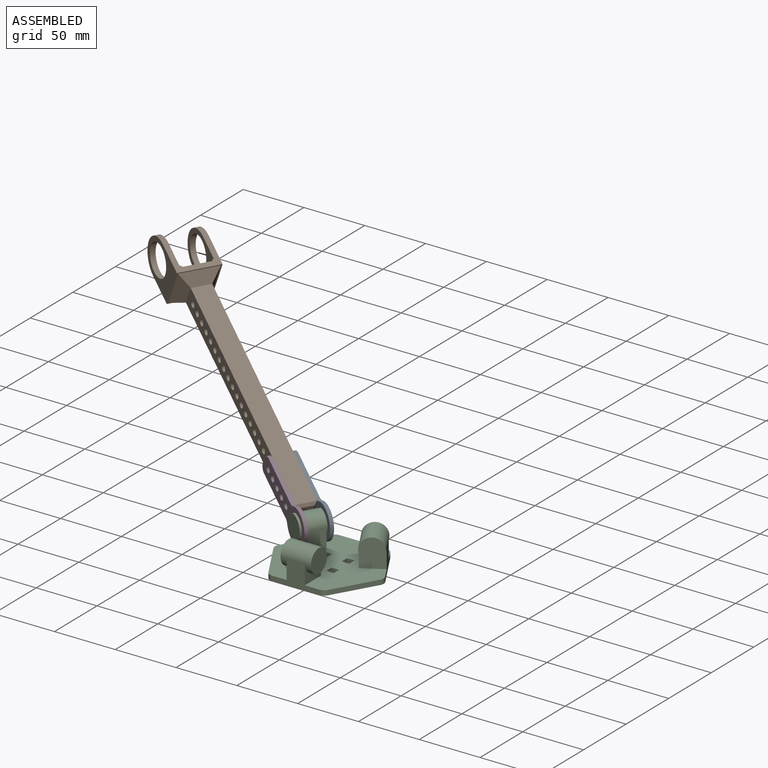
[diagram: assembled view]
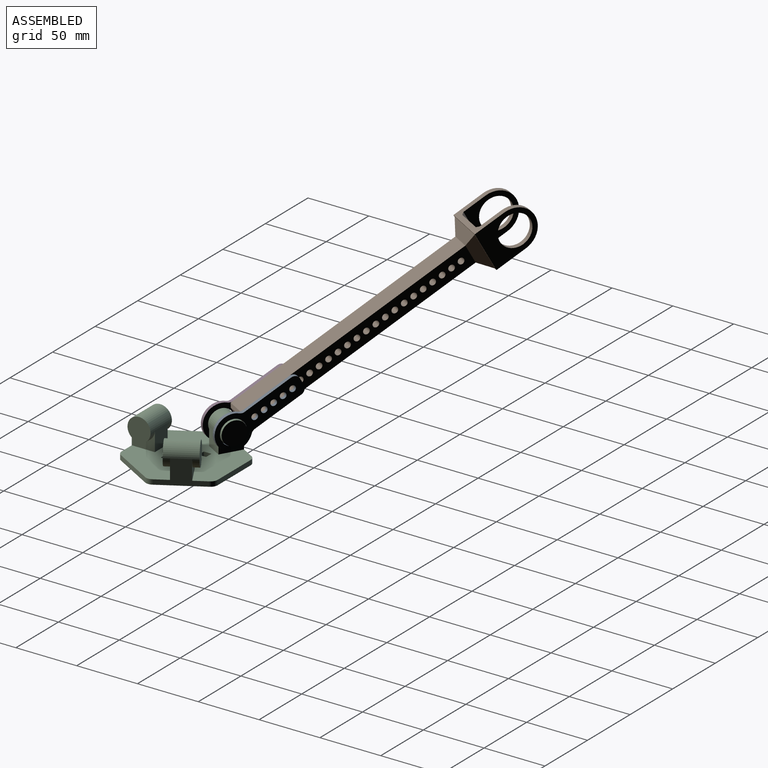
[diagram: assembled view, second angle]
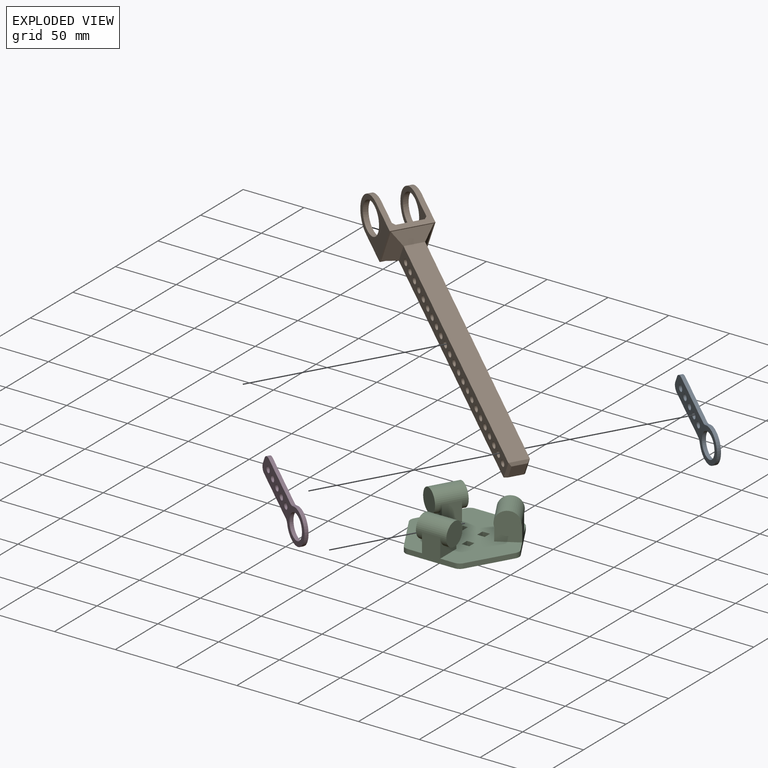
[diagram: exploded view]
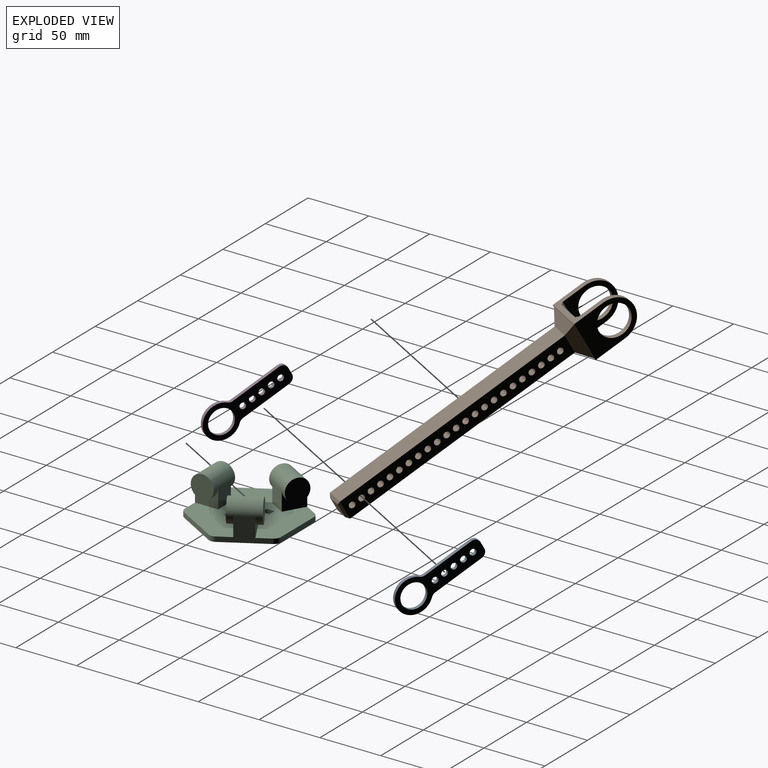
[diagram: exploded view, second angle]
ASSEMBLY  parts=4 mates=4
PART A: 16 faces, bbox 72x28x3 mm
  f0: plane 39.14x3mm, normal (0,-1,0), area 117.4mm2, adj f8,f9,f12,f15
  f1: plane 39.14x3mm, normal (0,1,0), area 117.4mm2, adj f8,f9,f13,f14
  f2: cylinder r=2.5mm len=5mm, axis (0,0,-1), area 47.1mm2, adj f8,f9
  f3: cylinder r=2.5mm len=5mm, axis (0,0,-1), area 47.1mm2, adj f8,f9
  f4: cylinder r=2.5mm len=5mm, axis (0,0,-1), area 47.1mm2, adj f8,f9
  f5: cylinder r=2.5mm len=5mm, axis (0,0,-1), area 47.1mm2, adj f8,f9
  f6: cylinder r=2.5mm len=5mm, axis (0,0,-1), area 47.1mm2, adj f8,f9
  f7: plane 6x3mm, normal (-1,0,0), area 18mm2, adj f8,f9,f14,f15
  f8: plane 72x28mm, normal (0,0,1), area 911mm2, adj f0,f1,f2,f3,f4,f5,f6,f7
  f9: plane 72x28mm, normal (0,0,-1), area 911mm2, adj f0,f1,f2,f3,f4,f5,f6,f7
  f10: cylinder r=10mm len=20mm, axis (0,0,1), area 188.5mm2, adj f8,f9
  f11: cylinder r=14mm len=28mm, axis (0,0,1), area 200.6mm2, adj f8,f9,f12,f13
  f12: cylinder r=5mm len=3.65mm, axis (0,0,1), area 12.3mm2, adj f0,f8,f9,f11
  f13: cylinder r=5mm len=3.65mm, axis (0,0,1), area 12.3mm2, adj f1,f8,f9,f11
  f14: cylinder r=5mm len=5mm, axis (0,0,1), area 23.6mm2, adj f1,f7,f8,f9
  f15: cylinder r=5mm len=5mm, axis (0,0,-1), area 23.6mm2, adj f0,f7,f8,f9
PART B: 50 faces, bbox 241.8x34x33.8 mm
  f0: plane 34x33.8mm, normal (1,0,0), area 125.2mm2, adj f1,f4,f7,f8,f46,f47,f48,f49
  f1: plane 34x24.9mm, normal (0,0,1), area 320.7mm2, adj f0,f2,f3,f7,f8,f9,f10,f11
  f2: cylinder r=16.9mm len=33.8mm, axis (0,1,0), area 223mm2, adj f1,f4,f7,f10
  f3: cylinder r=16.9mm len=33.8mm, axis (0,1,0), area 223mm2, adj f1,f4,f8,f11
  f4: plane 34x24.9mm, normal (0,0,-1), area 320.7mm2, adj f0,f2,f3,f7,f8,f9,f10,f11
  f5: cylinder r=12.9mm len=25.8mm, axis (0,1,0), area 340.4mm2, adj f7,f10
  f6: cylinder r=12.9mm len=25.8mm, axis (0,1,0), area 340.4mm2, adj f8,f11
  f7: plane 41.8x33.8mm, normal (0,-1,0), area 767.5mm2, adj f0,f1,f2,f4,f5
  f8: plane 41.8x33.8mm, normal (0,1,0), area 767.5mm2, adj f0,f1,f3,f4,f6
  f9: plane 33.8x21.6mm, normal (-1,0,0), area 730.1mm2, adj f1,f4,f12,f13
  f10: plane 35.6x33.8mm, normal (0,1,0), area 557.9mm2, adj f1,f2,f4,f5,f12
  f11: plane 35.6x33.8mm, normal (0,-1,0), area 557.9mm2, adj f1,f3,f4,f6,f13
  f12: plane 33.8x2mm, normal (-0.71,0.71,0), area 95.6mm2, adj f1,f4,f9,f10
  f13: plane 33.8x2mm, normal (-0.71,-0.71,0), area 95.6mm2, adj f1,f4,f9,f11
  f14: plane 190x16mm, normal (0,0,-1), area 3040mm2, adj f15,f17,f43,f47
  f15: plane 190x16mm, normal (0,1,0), area 2588.4mm2, adj f14,f16,f19,f20,f21,f22,f23,f24
  f16: plane 190x16mm, normal (0,0,1), area 3040mm2, adj f15,f17,f44,f48
  f17: plane 190x16mm, normal (0,-1,0), area 2588.4mm2, adj f14,f16,f19,f20,f21,f22,f23,f24
  f18: plane 12x12mm, normal (1,0,0), area 144mm2, adj f42,f43,f44,f45
  f19: cylinder r=2.5mm len=16mm, axis (0,-1,0), area 251.3mm2, adj f15,f17
  f20: cylinder r=2.5mm len=16mm, axis (0,-1,0), area 251.3mm2, adj f15,f17
  f21: cylinder r=2.5mm len=16mm, axis (0,-1,0), area 251.3mm2, adj f15,f17
  f22: cylinder r=2.5mm len=16mm, axis (0,-1,0), area 251.3mm2, adj f15,f17
  f23: cylinder r=2.5mm len=16mm, axis (0,-1,0), area 251.3mm2, adj f15,f17
  f24: cylinder r=2.5mm len=16mm, axis (0,-1,0), area 251.3mm2, adj f15,f17
  f25: cylinder r=2.5mm len=16mm, axis (0,-1,0), area 251.3mm2, adj f15,f17
  f26: cylinder r=2.5mm len=16mm, axis (0,-1,0), area 251.3mm2, adj f15,f17
  f27: cylinder r=2.5mm len=16mm, axis (0,-1,0), area 251.3mm2, adj f15,f17
  f28: cylinder r=2.5mm len=16mm, axis (0,-1,0), area 251.3mm2, adj f15,f17
  f29: cylinder r=2.5mm len=16mm, axis (0,-1,0), area 251.3mm2, adj f15,f17
  f30: cylinder r=2.5mm len=16mm, axis (0,-1,0), area 251.3mm2, adj f15,f17
  f31: cylinder r=2.5mm len=16mm, axis (0,-1,0), area 251.3mm2, adj f15,f17
  f32: cylinder r=2.5mm len=16mm, axis (0,-1,0), area 251.3mm2, adj f15,f17
  f33: cylinder r=2.5mm len=16mm, axis (0,-1,0), area 251.3mm2, adj f15,f17
  f34: cylinder r=2.5mm len=16mm, axis (0,-1,0), area 251.3mm2, adj f15,f17
  f35: cylinder r=2.5mm len=16mm, axis (0,-1,0), area 251.3mm2, adj f15,f17
  f36: cylinder r=2.5mm len=16mm, axis (0,-1,0), area 251.3mm2, adj f15,f17
  f37: cylinder r=2.5mm len=16mm, axis (0,-1,0), area 251.3mm2, adj f15,f17
  f38: cylinder r=2.5mm len=16mm, axis (0,-1,0), area 251.3mm2, adj f15,f17
  f39: cylinder r=2.5mm len=16mm, axis (0,-1,0), area 251.3mm2, adj f15,f17
  f40: cylinder r=2.5mm len=16mm, axis (0,-1,0), area 251.3mm2, adj f15,f17
  f41: cylinder r=2.5mm len=16mm, axis (0,-1,0), area 251.3mm2, adj f15,f17
  f42: plane 16x2mm, normal (0.71,0.71,0), area 39.6mm2, adj f15,f18,f43,f44
  f43: plane 16x2mm, normal (0.71,0,-0.71), area 39.6mm2, adj f14,f18,f42,f45
  f44: plane 16x2mm, normal (0.71,0,0.71), area 39.6mm2, adj f16,f18,f42,f45
  f45: plane 16x2mm, normal (0.71,-0.71,0), area 39.6mm2, adj f17,f18,f43,f44
  f46: plane 32x8mm, normal (0.71,0.71,0), area 271.5mm2, adj f0,f15,f47,f48
  f47: plane 32x8mm, normal (0.71,0,-0.71), area 271.5mm2, adj f0,f14,f46,f49
  f48: plane 32x8mm, normal (0.71,0,0.71), area 271.5mm2, adj f0,f16,f46,f49
  f49: plane 32x8mm, normal (0.71,-0.71,0), area 271.5mm2, adj f0,f17,f47,f48
PART C: 48 faces, bbox 89.4x79x29.5 mm
  f0: plane 89.37x79mm, normal (0,0,1), area 4384.5mm2, adj f2,f3,f4,f5,f9,f10,f11,f12
  f1: plane 89.37x79mm, normal (0,0,-1), area 5239.5mm2, adj f2,f9,f16,f23,f24,f25,f26,f27
  f2: plane 38.68x20mm, normal (0,-1,0), area 394.7mm2, adj f0,f1,f3,f5,f6,f42,f47
  f3: plane 19x16mm, normal (1,0,0), area 162.2mm2, adj f0,f2,f4,f6
  f4: plane 16x15mm, normal (0,1,0), area 240mm2, adj f0,f3,f5,f6
  f5: plane 19x16mm, normal (-1,0,0), area 162.2mm2, adj f0,f2,f4,f6
  f6: cylinder r=9.5mm len=25mm, axis (-1,0,0), area 1044.6mm2, adj f2,f3,f4,f5,f7,f8
  f7: plane 19x19mm, normal (1,0,0), area 283.5mm2, adj f6
  f8: plane 19x19mm, normal (-1,0,0), area 283.5mm2, adj f6
  f9: plane 33.5x20mm, normal (-0.87,0.5,0), area 394.7mm2, adj f0,f1,f10,f12,f13,f43,f44
  f10: plane 16.45x16mm, normal (-0.5,-0.87,0), area 162.2mm2, adj f0,f9,f11,f13
  f11: plane 16x12.99mm, normal (0.87,-0.5,0), area 240mm2, adj f0,f10,f12,f13
  f12: plane 16.45x16mm, normal (0.5,0.87,0), area 162.2mm2, adj f0,f9,f11,f13
  f13: cylinder r=9.5mm len=31.15mm, axis (0.5,0.87,0), area 1044.6mm2, adj f9,f10,f11,f12,f14,f15
  f14: plane 19x16.45mm, normal (-0.5,-0.87,0), area 283.5mm2, adj f13
  f15: plane 19x16.45mm, normal (0.5,0.87,0), area 283.5mm2, adj f13
  f16: plane 33.5x20mm, normal (0.87,0.5,0), area 394.7mm2, adj f0,f1,f17,f19,f20,f45,f46
  f17: plane 16.45x16mm, normal (-0.5,0.87,0), area 162.2mm2, adj f0,f16,f18,f20
  f18: plane 16x12.99mm, normal (-0.87,-0.5,0), area 240mm2, adj f0,f17,f19,f20
  f19: plane 16.45x16mm, normal (0.5,-0.87,0), area 162.2mm2, adj f0,f16,f18,f20
  f20: cylinder r=9.5mm len=31.15mm, axis (0.5,-0.87,0), area 1044.6mm2, adj f16,f17,f18,f19,f21,f22
  f21: plane 19x16.45mm, normal (-0.5,0.87,0), area 283.5mm2, adj f20
  f22: plane 19x16.45mm, normal (0.5,-0.87,0), area 283.5mm2, adj f20
  f23: plane 33.5x19.34mm, normal (-0.87,-0.5,0), area 154.7mm2, adj f0,f1,f42,f43
  f24: plane 38.68x4mm, normal (0,1,0), area 154.7mm2, adj f0,f1,f44,f45
  f25: plane 33.5x19.34mm, normal (0.87,-0.5,0), area 154.7mm2, adj f0,f1,f46,f47
  f26: plane 6.2x4mm, normal (1,0,0), area 24.8mm2, adj f0,f1,f27,f29
  f27: plane 6.2x4mm, normal (0,1,0), area 24.8mm2, adj f0,f1,f26,f28
  f28: plane 6.2x4mm, normal (-1,0,0), area 24.8mm2, adj f0,f1,f27,f29
  f29: plane 6.2x4mm, normal (0,-1,0), area 24.8mm2, adj f0,f1,f26,f28
  f30: plane 6.2x4mm, normal (0,-1,0), area 24.8mm2, adj f0,f1,f31,f33
  f31: plane 6.2x4mm, normal (1,0,0), area 24.8mm2, adj f0,f1,f30,f32
  f32: plane 6.2x4mm, normal (0,1,0), area 24.8mm2, adj f0,f1,f31,f33
  f33: plane 6.2x4mm, normal (-1,0,0), area 24.8mm2, adj f0,f1,f30,f32
  f34: plane 6.2x4mm, normal (-1,0,0), area 24.8mm2, adj f0,f1,f35,f37
  f35: plane 6.2x4mm, normal (0,-1,0), area 24.8mm2, adj f0,f1,f34,f36
  f36: plane 6.2x4mm, normal (1,0,0), area 24.8mm2, adj f0,f1,f35,f37
  f37: plane 6.2x4mm, normal (0,1,0), area 24.8mm2, adj f0,f1,f34,f36
  f38: plane 6.2x4mm, normal (0,1,0), area 24.8mm2, adj f0,f1,f39,f41
  f39: plane 6.2x4mm, normal (-1,0,0), area 24.8mm2, adj f0,f1,f38,f40
  f40: plane 6.2x4mm, normal (0,-1,0), area 24.8mm2, adj f0,f1,f39,f41
  f41: plane 6.2x4mm, normal (1,0,0), area 24.8mm2, adj f0,f1,f38,f40
  f42: cylinder r=6mm len=5.2mm, axis (0,0,1), area 25.1mm2, adj f0,f1,f2,f23
  f43: cylinder r=6mm len=6mm, axis (0,0,1), area 25.1mm2, adj f0,f1,f9,f23
  f44: cylinder r=6mm len=5.2mm, axis (0,0,1), area 25.1mm2, adj f0,f1,f9,f24
  f45: cylinder r=6mm len=5.2mm, axis (0,0,1), area 25.1mm2, adj f0,f1,f16,f24
  f46: cylinder r=6mm len=6mm, axis (0,0,1), area 25.1mm2, adj f0,f1,f16,f25
  f47: cylinder r=6mm len=5.2mm, axis (0,0,1), area 25.1mm2, adj f0,f1,f2,f25
PART D: same geometry as A
PLACE A rot(axis=(-0.87,0.49,-0.01),90deg) t=(-47.87,66.87,32.21)mm
PLACE B rot(axis=(0.18,0.68,-0.71),41.1deg) t=(-204.81,148.25,127.97)mm
PLACE C at identity fixed
PLACE D rot(axis=(-0.87,0.49,-0.01),90deg) t=(-57.37,50.42,32.21)mm
MATE fastened B.f37 <-> A.f2  axis (0.5,0.87,0) through (-60.05,73.91,39.83)mm
MATE planar D.f9 <-> C.f13  axis (-0.5,-0.87,0) through (-38.73,39.66,29.64)mm
MATE fastened D.f2 <-> B.f37  axis (0.5,0.87,0) through (-68.05,60.05,39.83)mm
MATE cylindrical C.f13 <-> D.f10  axis (-0.5,-0.87,0) through (-32.23,34.17,16)mm
